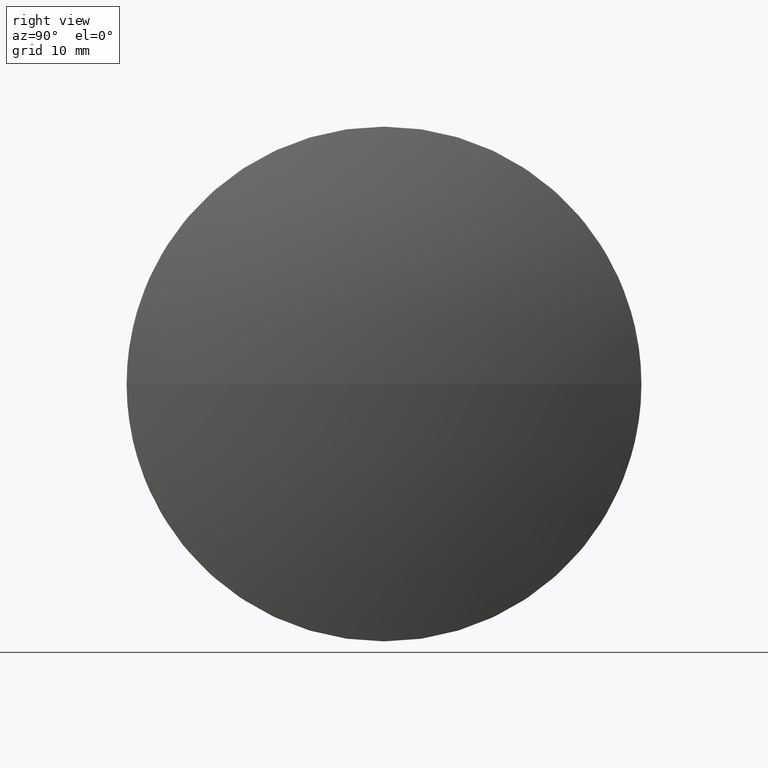
[diagram: clean part render]
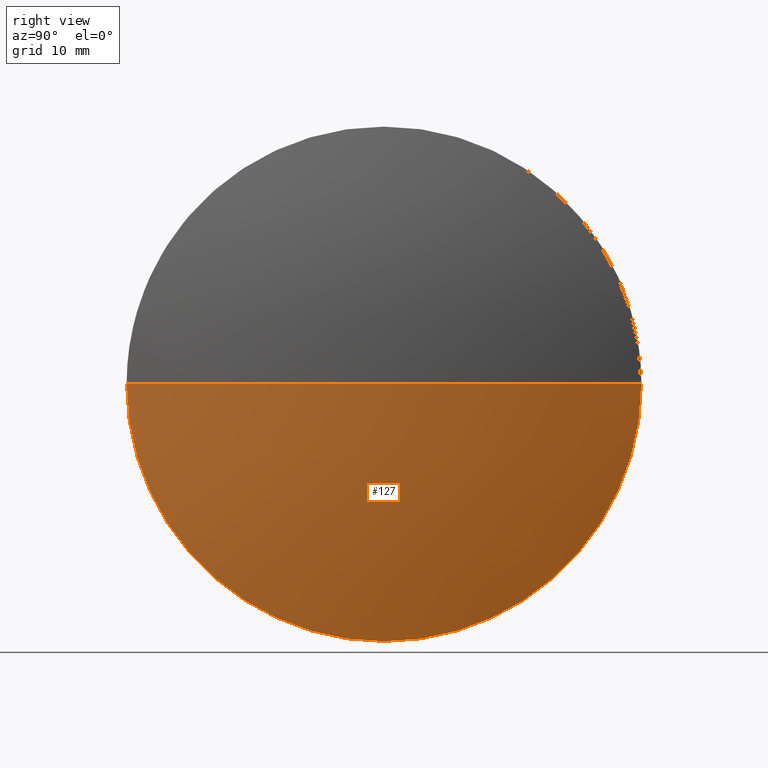
[diagram: same view with one face highlighted and labeled with its STEP entity id]
A machine part, right view. The second image highlights one B-rep face of the part: STEP entity #127.
In plain terms, the highlighted spherical surface has radius 82.6844 mm.
Its self-contained STEP definition (entity closure, byte-faithful):
#2 = DIRECTION ( 'NONE',  ( 1.000000000000000000, 0.0000000000000000000, 0.0000000000000000000 ) ) ;
#10 = CARTESIAN_POINT ( 'NONE',  ( 418.8113751889766300, 77.30118673096537000, -3.061616997868381900E-015 ) ) ;
#19 = DIRECTION ( 'NONE',  ( 0.0000000000000000000, 0.0000000000000000000, 1.000000000000000000 ) ) ;
#24 = ORIENTED_EDGE ( 'NONE', *, *, #95, .F. ) ;
#30 = DIRECTION ( 'NONE',  ( -1.000000000000000000, -0.0000000000000000000, -0.0000000000000000000 ) ) ;
#33 = DIRECTION ( 'NONE',  ( 0.0000000000000000000, 0.0000000000000000000, 1.000000000000000000 ) ) ;
#35 = CARTESIAN_POINT ( 'NONE',  ( 422.6813751889766300, 102.3011867309653400, 0.0000000000000000000 ) ) ;
#49 = CARTESIAN_POINT ( 'NONE',  ( 418.8113751889766300, 102.3011867309653600, -24.99999999999999300 ) ) ;
#50 = DIRECTION ( 'NONE',  ( 0.0000000000000000000, 1.224646799147353200E-016, -1.000000000000000000 ) ) ;
#61 = DIRECTION ( 'NONE',  ( -0.0000000000000000000, 0.0000000000000000000, 1.000000000000000000 ) ) ;
#68 = CIRCLE ( 'NONE', #99, 24.99999999999999300 ) ;
#74 = EDGE_CURVE ( 'NONE', #140, #77, #154, .T. ) ;
#77 = VERTEX_POINT ( 'NONE', #160 ) ;
#91 = AXIS2_PLACEMENT_3D ( 'NONE', #137, #50, #152 ) ;
#92 = ORIENTED_EDGE ( 'NONE', *, *, #156, .F. ) ;
#94 = CIRCLE ( 'NONE', #111, 24.99999999999999300 ) ;
#95 = EDGE_CURVE ( 'NONE', #77, #184, #94, .T. ) ;
#99 = AXIS2_PLACEMENT_3D ( 'NONE', #178, #182, #33 ) ;
#110 = FACE_OUTER_BOUND ( 'NONE', #174, .T. ) ;
#111 = AXIS2_PLACEMENT_3D ( 'NONE', #112, #30, #19 ) ;
#112 = CARTESIAN_POINT ( 'NONE',  ( 418.8113751889766300, 102.3011867309653600, 0.0000000000000000000 ) ) ;
#114 = CIRCLE ( 'NONE', #91, 82.68435400516783300 ) ;
#116 = DIRECTION ( 'NONE',  ( 0.0000000000000000000, 1.000000000000000000, 0.0000000000000000000 ) ) ;
#118 = CARTESIAN_POINT ( 'NONE',  ( 339.9970211838087800, 102.3011867309653400, 0.0000000000000000000 ) ) ;
#124 = EDGE_CURVE ( 'NONE', #140, #180, #114, .T. ) ;
#127 = ADVANCED_FACE ( 'NONE', ( #110 ), #161, .T. ) ;
#128 = ORIENTED_EDGE ( 'NONE', *, *, #124, .T. ) ;
#134 = AXIS2_PLACEMENT_3D ( 'NONE', #149, #61, #2 ) ;
#137 = CARTESIAN_POINT ( 'NONE',  ( 339.9970211838087800, 102.3011867309653400, 0.0000000000000000000 ) ) ;
#138 = ORIENTED_EDGE ( 'NONE', *, *, #74, .F. ) ;
#140 = VERTEX_POINT ( 'NONE', #35 ) ;
#142 = AXIS2_PLACEMENT_3D ( 'NONE', #118, #166, #116 ) ;
#149 = CARTESIAN_POINT ( 'NONE',  ( 339.9970211838087800, 102.3011867309653400, 0.0000000000000000000 ) ) ;
#152 = DIRECTION ( 'NONE',  ( 0.0000000000000000000, 1.000000000000000000, 1.224646799147353200E-016 ) ) ;
#154 = CIRCLE ( 'NONE', #134, 82.68435400516781900 ) ;
#156 = EDGE_CURVE ( 'NONE', #184, #180, #68, .T. ) ;
#160 = CARTESIAN_POINT ( 'NONE',  ( 418.8113751889766300, 127.3011867309653600, 0.0000000000000000000 ) ) ;
#161 = SPHERICAL_SURFACE ( 'NONE', #142, 82.68435400516783300 ) ;
#166 = DIRECTION ( 'NONE',  ( -0.0000000000000000000, 0.0000000000000000000, -1.000000000000000000 ) ) ;
#174 = EDGE_LOOP ( 'NONE', ( #138, #128, #92, #24 ) ) ;
#178 = CARTESIAN_POINT ( 'NONE',  ( 418.8113751889766300, 102.3011867309653600, 0.0000000000000000000 ) ) ;
#180 = VERTEX_POINT ( 'NONE', #10 ) ;
#182 = DIRECTION ( 'NONE',  ( -1.000000000000000000, -0.0000000000000000000, -0.0000000000000000000 ) ) ;
#184 = VERTEX_POINT ( 'NONE', #49 ) ;